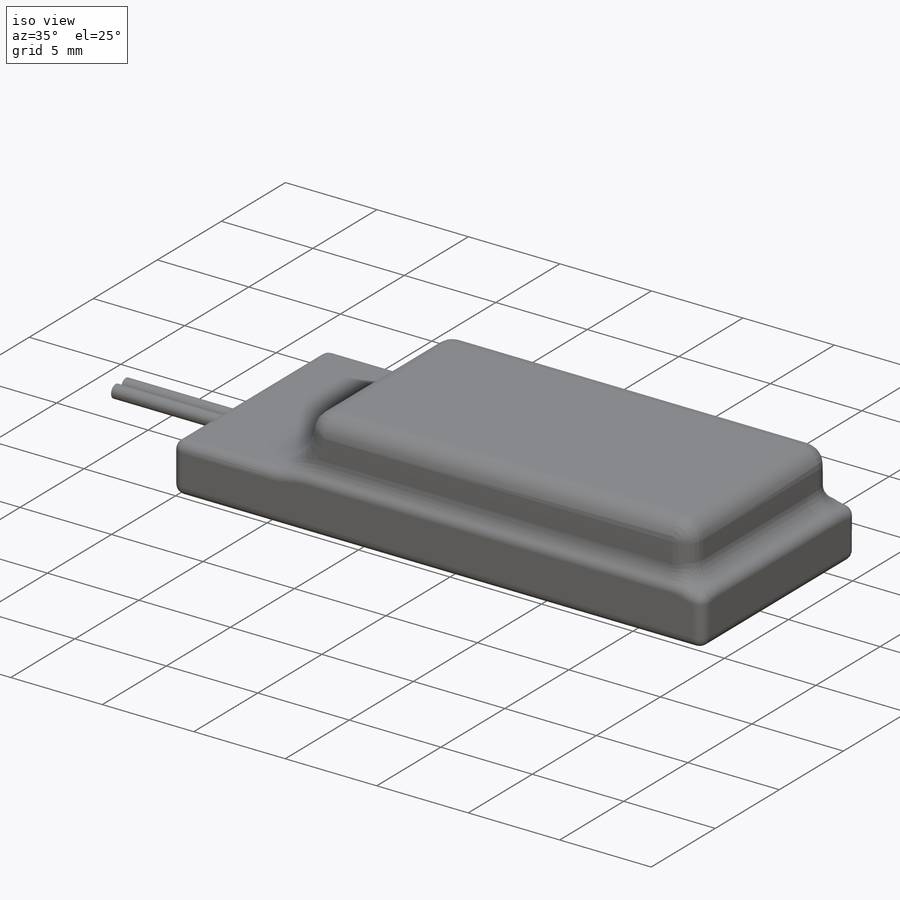
[diagram: iso view]
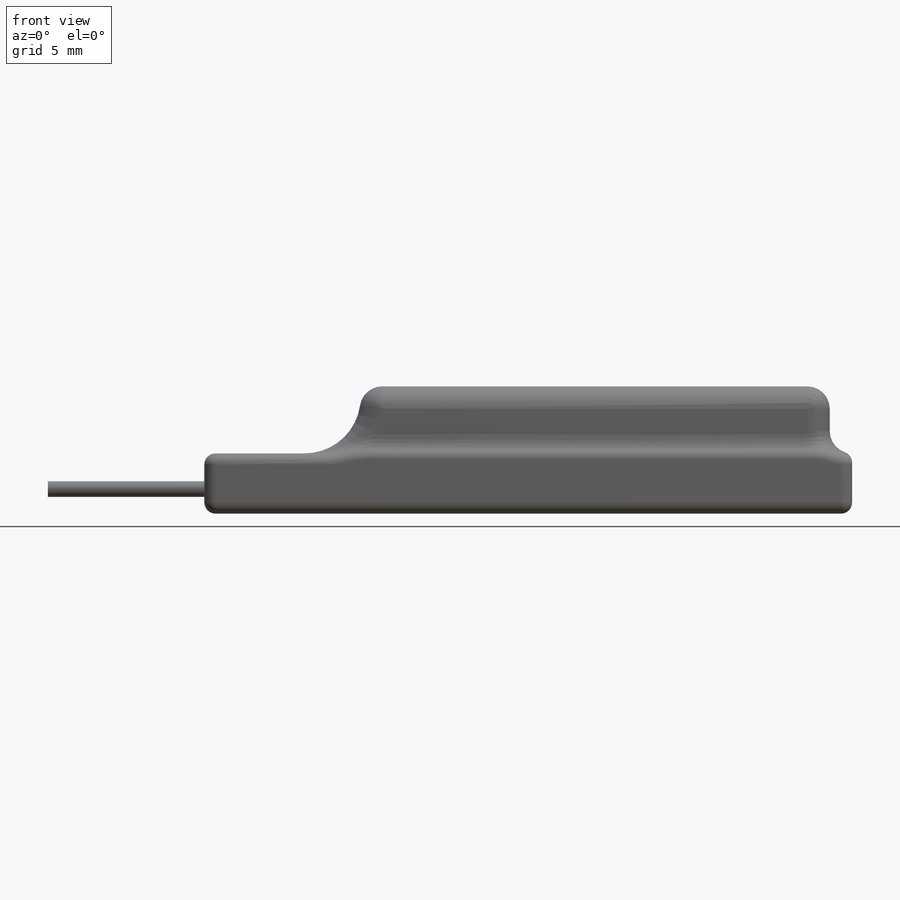
[diagram: front view]
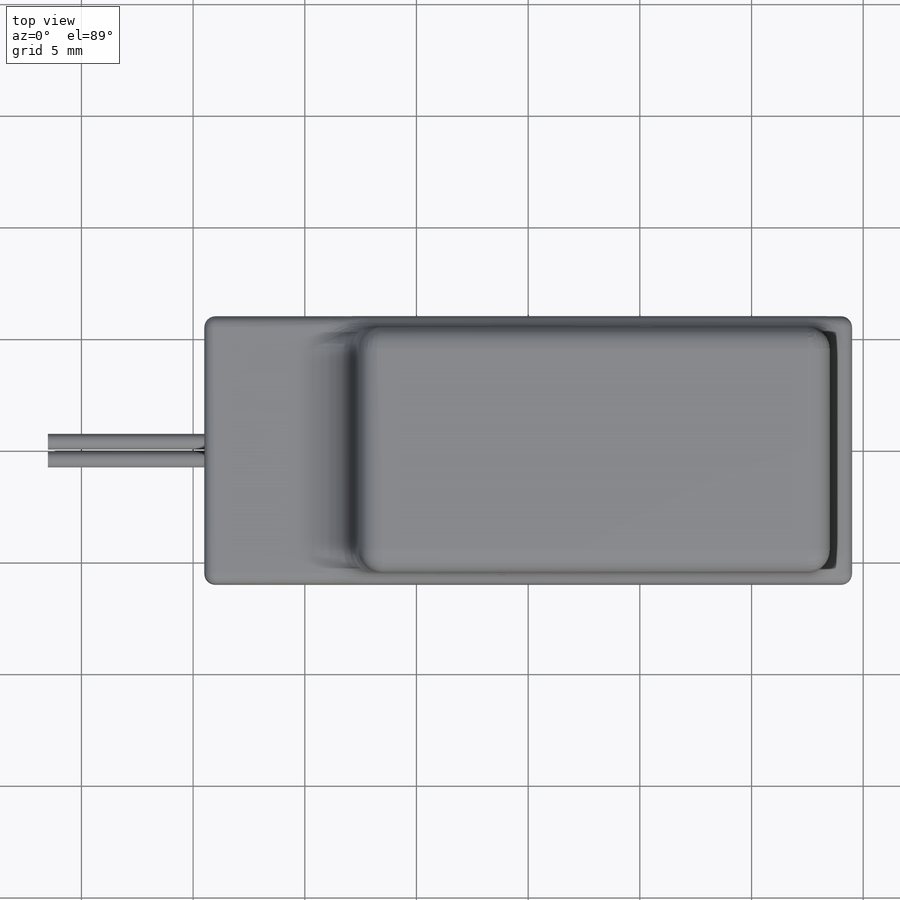
[diagram: top view]
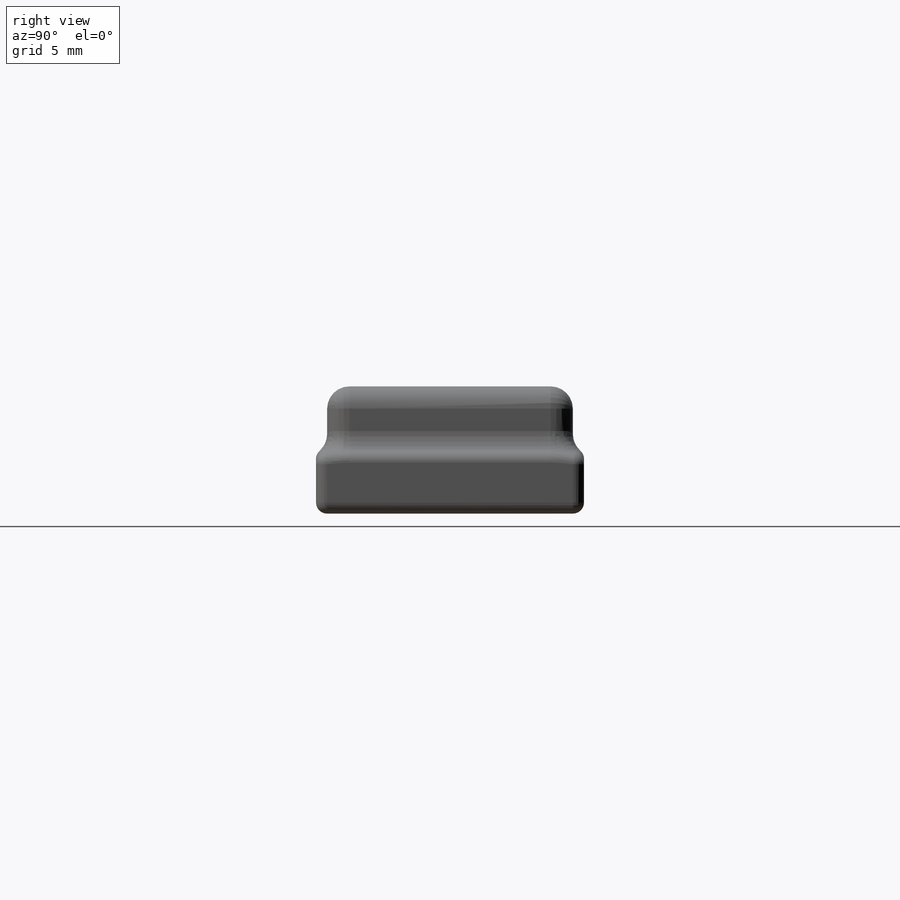
[diagram: right view]
SOLIDWORKS PART (.sldprt)
format: sldprt  version: not decoded by parser v0  size: 356,864 bytes
history: native  units: mm
features: fillet x9, sketch x3, extrude x2, material x1, cut_extrude x1 (+13 scaffold rows collapsed)
feature tree (29):
  scaffold x13  (default folders/planes/origin — collapsed)
  material  "Material <not specified>"
  sketch  "Sketch1"  dims[D1=29.0mm D2=12.0mm D3=12.0mm]
  extrude  "Boss-Extrude1"  Depth=5.7mm
  sketch  "Sketch2"  dims[D1=7.0mm D2=1.0mm D3=0.5mm D4=0.5mm]
  cut_extrude  "Cut-Extrude1"  Depth=3mm
  fillet  "Fillet9"  Radius=2.5mm
  fillet  "Fillet10"  Radius=1mm
  fillet  "Fillet11"  Radius=1mm
  fillet  "Fillet12"  Radius=1mm
  fillet  "Fillet13"  Radius=1mm
  fillet  "Fillet14"  Radius=0.5mm
  fillet  "Fillet15"  Radius=0.5mm
  fillet  "Fillet16"  Radius=0.5mm
  fillet  "Fillet17"  Radius=0.5mm
  sketch  "Sketch3"  dims[D1=0.7mm D2=0.4mm]
  extrude  "Boss-Extrude2"  Depth=7mm
decode coverage: 15 of 15 modeling features carry decoded parameters
note: suppression state not decoded; provenance and decode notes live in map.json
